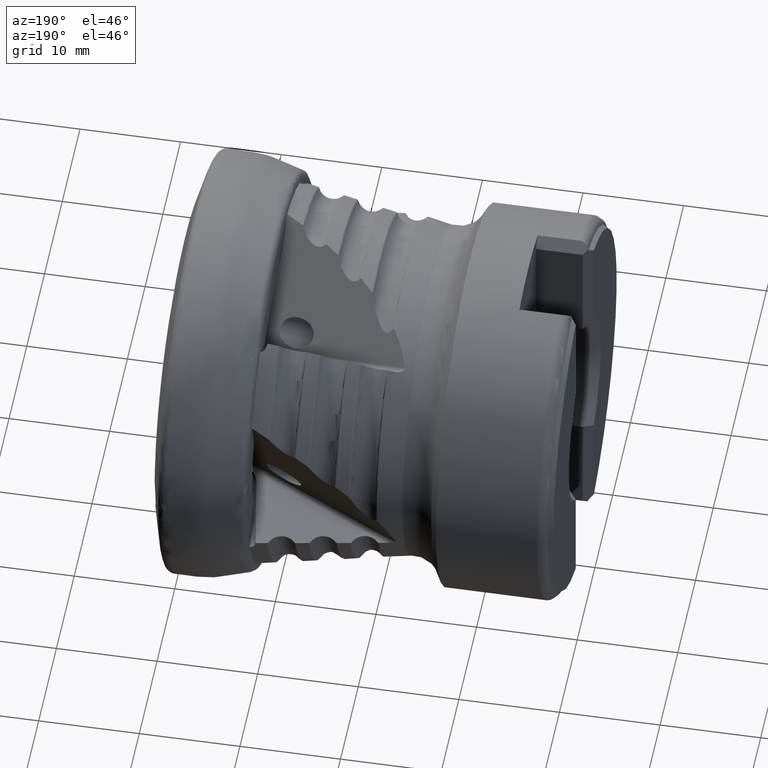
[diagram: clean part render]
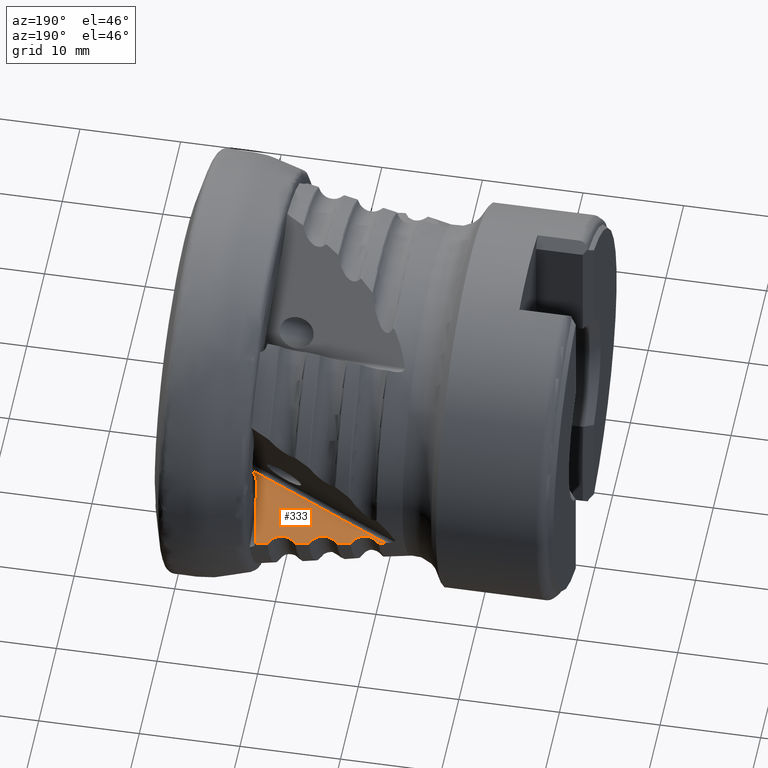
[diagram: same view with one face highlighted and labeled with its STEP entity id]
A machine part, auxiliary view. The second image highlights one B-rep face of the part: STEP entity #333.
In plain terms, the highlighted planar face has unit normal (0.0698, -0.3083, -0.9487).
Its self-contained STEP definition (entity closure, byte-faithful):
#233 = VERTEX_POINT ( 'NONE', #8314 ) ;
#258 = CARTESIAN_POINT ( 'NONE',  ( -21.13077898559608400, 15.63374220928455700, -5.958780708422547300 ) ) ;
#293 = CARTESIAN_POINT ( 'NONE',  ( -21.17644368797330800, 15.67778597013880300, -5.976448909384140000 ) ) ;
#333 = ADVANCED_FACE ( 'NONE', ( #2074 ), #7464, .F. ) ;
#340 = CARTESIAN_POINT ( 'NONE',  ( -21.24468785600371100, 15.69721520097060500, -5.987779528999408500 ) ) ;
#343 = CARTESIAN_POINT ( 'NONE',  ( -21.30936546724134600, 15.68481944316674500, -5.988507350455400100 ) ) ;
#407 = EDGE_CURVE ( 'NONE', #1407, #2647, #2419, .T. ) ;
#487 = B_SPLINE_CURVE_WITH_KNOTS ( 'NONE', 3,
 ( #1567, #2274, #3712, #3701 ),
 .UNSPECIFIED., .F., .F.,
 ( 4, 4 ),
 ( 2.036036672988554700E-007, 0.001244926397012825100 ),
 .UNSPECIFIED. ) ;
#517 = EDGE_CURVE ( 'NONE', #1560, #5866, #7891, .T. ) ;
#594 = VERTEX_POINT ( 'NONE', #9152 ) ;
#600 = AXIS2_PLACEMENT_3D ( 'NONE', #3611, #3164, #5948 ) ;
#789 = B_SPLINE_CURVE_WITH_KNOTS ( 'NONE', 3,
 ( #4479, #4472, #4530, #4533 ),
 .UNSPECIFIED., .F., .F.,
 ( 4, 4 ),
 ( 2.036524363510435400E-007, 0.0005924244232392668000 ),
 .UNSPECIFIED. ) ;
#885 = VERTEX_POINT ( 'NONE', #6089 ) ;
#956 = AXIS2_PLACEMENT_3D ( 'NONE', #2192, #2195, #2207 ) ;
#1130 = CARTESIAN_POINT ( 'NONE',  ( -20.95030687636087000, 15.48034117751989300, -5.895668407539222500 ) ) ;
#1145 = CARTESIAN_POINT ( 'NONE',  ( -21.04506692220513400, 15.55107263243876200, -5.925617720775894000 ) ) ;
#1161 = CARTESIAN_POINT ( 'NONE',  ( -21.13077898559608400, 15.63374220928455700, -5.958780708422547300 ) ) ;
#1163 = CARTESIAN_POINT ( 'NONE',  ( -20.74332352935278600, 15.36191969955073400, -5.841972403255405200 ) ) ;
#1165 = ORIENTED_EDGE ( 'NONE', *, *, #7546, .T. ) ;
#1170 = CARTESIAN_POINT ( 'NONE',  ( -14.68017554922010800, 16.86287852377554900, -5.883868100585127400 ) ) ;
#1173 = CARTESIAN_POINT ( 'NONE',  ( -20.63046404064175500, 15.31451623523694000, -5.818272044841218200 ) ) ;
#1175 = CARTESIAN_POINT ( 'NONE',  ( -20.39900161665384500, 15.24844904633547800, -5.779787146301324600 ) ) ;
#1184 = CARTESIAN_POINT ( 'NONE',  ( -20.27738543479607700, 15.22880764472350600, -5.764463389490040300 ) ) ;
#1189 = EDGE_CURVE ( 'NONE', #7876, #233, #789, .T. ) ;
#1192 = CARTESIAN_POINT ( 'NONE',  ( -20.03339726281408100, 15.21848387739227500, -5.743169665906888700 ) ) ;
#1193 = CARTESIAN_POINT ( 'NONE',  ( -19.91199223143153300, 15.22740552301761200, -5.737142130650839900 ) ) ;
#1205 = CARTESIAN_POINT ( 'NONE',  ( -19.67037029993064900, 15.27365548696311000, -5.734404305429641200 ) ) ;
#1209 = CARTESIAN_POINT ( 'NONE',  ( -19.55285448332383800, 15.31072924383423500, -5.737809901684706800 ) ) ;
#1232 = CARTESIAN_POINT ( 'NONE',  ( -19.33060176925052800, 15.41004112547875100, -5.753737068126485900 ) ) ;
#1235 = CARTESIAN_POINT ( 'NONE',  ( -19.22386798189817700, 15.47352000730751900, -5.766514962588680700 ) ) ;
#1244 = CARTESIAN_POINT ( 'NONE',  ( -18.93611578570138900, 15.69400571539829900, -5.816998016207925600 ) ) ;
#1246 = CARTESIAN_POINT ( 'NONE',  ( -18.78070191684981800, 15.88541199853407600, -5.867762820519007300 ) ) ;
#1256 = CARTESIAN_POINT ( 'NONE',  ( -18.68017554922010600, 16.10227306820873800, -5.930834011889275300 ) ) ;
#1261 = EDGE_CURVE ( 'NONE', #7119, #594, #7531, .T. ) ;
#1407 = VERTEX_POINT ( 'NONE', #2684 ) ;
#1560 = VERTEX_POINT ( 'NONE', #2147 ) ;
#1563 = EDGE_CURVE ( 'NONE', #3793, #885, #7801, .T. ) ;
#1567 = CARTESIAN_POINT ( 'NONE',  ( -17.30936546724134200, 16.44872999172213600, -5.942615328961123200 ) ) ;
#1607 = ORIENTED_EDGE ( 'NONE', *, *, #1853, .T. ) ;
#1683 = CARTESIAN_POINT ( 'NONE',  ( -14.53201490601524200, 16.97617012446819700, -5.909785202331270200 ) ) ;
#1720 = EDGE_CURVE ( 'NONE', #4123, #7851, #8244, .T. ) ;
#1850 = CARTESIAN_POINT ( 'NONE',  ( -21.13077898559608400, 15.63374220928455700, -5.958780708422547300 ) ) ;
#1853 = EDGE_CURVE ( 'NONE', #4123, #7876, #3843, .T. ) ;
#2017 = DIRECTION ( 'NONE',  ( 0.9289711258367763200, -0.3264984143814710400, 0.1743887403702933700 ) ) ;
#2021 = ORIENTED_EDGE ( 'NONE', *, *, #7081, .T. ) ;
#2074 = FACE_OUTER_BOUND ( 'NONE', #3999, .T. ) ;
#2147 = CARTESIAN_POINT ( 'NONE',  ( -13.13077898559607700, 17.15622228103376700, -5.865261261095938900 ) ) ;
#2192 = CARTESIAN_POINT ( 'NONE',  ( -4.372891301211312900, 19.02059961734240900, -5.827106973038751500 ) ) ;
#2195 = DIRECTION ( 'NONE',  ( -0.06975647374411161900, 0.3082642445077806200, 0.9487397904213958900 ) ) ;
#2207 = DIRECTION ( 'NONE',  ( 0.0000000000000000000, 0.9510565162951567500, -0.3090169943749377900 ) ) ;
#2259 = EDGE_CURVE ( 'NONE', #7119, #1407, #3043, .T. ) ;
#2274 = CARTESIAN_POINT ( 'NONE',  ( -17.71692943008815400, 16.37115902724115200, -5.947377298636594900 ) ) ;
#2419 = B_SPLINE_CURVE_WITH_KNOTS ( 'NONE', 3,
 ( #9108, #8266, #8848, #8997 ),
 .UNSPECIFIED., .F., .F.,
 ( 4, 4 ),
 ( 2.006483650806691500E-007, 0.0001950608163561744400 ),
 .UNSPECIFIED. ) ;
#2647 = VERTEX_POINT ( 'NONE', #3305 ) ;
#2684 = CARTESIAN_POINT ( 'NONE',  ( -10.53201490601524200, 17.73195789770003500, -5.861253931146295700 ) ) ;
#2904 = CARTESIAN_POINT ( 'NONE',  ( -17.30936546724134200, 16.44872999172213600, -5.942615328961123200 ) ) ;
#2941 = CARTESIAN_POINT ( 'NONE',  ( -17.24465997269405900, 16.46104527986685200, -5.941859311196396700 ) ) ;
#3027 = ORIENTED_EDGE ( 'NONE', *, *, #1261, .F. ) ;
#3037 = CARTESIAN_POINT ( 'NONE',  ( -17.17644058430651200, 16.44154165355684000, -5.930506340958131300 ) ) ;
#3043 = B_SPLINE_CURVE_WITH_KNOTS ( 'NONE', 3,
 ( #7861, #7703, #7890, #7900 ),
 .UNSPECIFIED., .F., .F.,
 ( 4, 4 ),
 ( 0.001447032345118048100, 0.002585979339104676600 ),
 .UNSPECIFIED. ) ;
#3049 = CARTESIAN_POINT ( 'NONE',  ( -17.13077898559608100, 16.39747936440939200, -5.912832347987484000 ) ) ;
#3060 = CIRCLE ( 'NONE', #600, 1.999999999999999100 ) ;
#3107 = B_SPLINE_CURVE_WITH_KNOTS ( 'NONE', 3,
 ( #3049, #3037, #2941, #2904 ),
 .UNSPECIFIED., .F., .F.,
 ( 4, 4 ),
 ( 2.846567567082059400E-007, 0.0001951307910455705000 ),
 .UNSPECIFIED. ) ;
#3164 = DIRECTION ( 'NONE',  ( -0.06975647374411163300, 0.3082642445077806200, 0.9487397904213960000 ) ) ;
#3222 = CARTESIAN_POINT ( 'NONE',  ( -7.791476762625717500, 10.61785928699304900, -3.348244005033093300 ) ) ;
#3305 = CARTESIAN_POINT ( 'NONE',  ( -10.68017554922010600, 17.61884533255605900, -5.835395001576242400 ) ) ;
#3426 = ORIENTED_EDGE ( 'NONE', *, *, #8778, .T. ) ;
#3611 = CARTESIAN_POINT ( 'NONE',  ( -6.458174607319104000, 12.12187608139875600, -3.738897109084158300 ) ) ;
#3638 = ORIENTED_EDGE ( 'NONE', *, *, #2259, .T. ) ;
#3701 = CARTESIAN_POINT ( 'NONE',  ( -18.53201490601524200, 16.21578945967374400, -5.956824152584888800 ) ) ;
#3712 = CARTESIAN_POINT ( 'NONE',  ( -18.12447943596537300, 16.29351312929615500, -5.952113894761911400 ) ) ;
#3737 = ORIENTED_EDGE ( 'NONE', *, *, #6937, .F. ) ;
#3771 = B_SPLINE_CURVE_WITH_KNOTS ( 'NONE', 3,
 ( #8949, #8952, #8892, #8888 ),
 .UNSPECIFIED., .F., .F.,
 ( 4, 4 ),
 ( 2.007257391034554100E-007, 0.0001952955297465423700 ),
 .UNSPECIFIED. ) ;
#3793 = VERTEX_POINT ( 'NONE', #7517 ) ;
#3843 = B_SPLINE_CURVE_WITH_KNOTS ( 'NONE', 3,
 ( #258, #293, #340, #343 ),
 .UNSPECIFIED., .F., .F.,
 ( 4, 4 ),
 ( 2.845870610322324200E-007, 0.0001950961736768307500 ),
 .UNSPECIFIED. ) ;
#3972 = CARTESIAN_POINT ( 'NONE',  ( -14.68017554922010800, 16.86287852377554900, -5.883868100585127400 ) ) ;
#3999 = EDGE_LOOP ( 'NONE', ( #7227, #5811, #3027, #3638, #5446, #3737, #8029, #1165, #3426, #8652, #6073, #5796, #2021, #7914, #1607, #6646, #7172 ) ) ;
#4123 = VERTEX_POINT ( 'NONE', #1850 ) ;
#4315 = CARTESIAN_POINT ( 'NONE',  ( -18.68017554922010600, 16.10227306820873800, -5.930834011889275300 ) ) ;
#4347 = CARTESIAN_POINT ( 'NONE',  ( -17.13077898559608100, 16.39747936440939200, -5.912832347987484000 ) ) ;
#4383 = CARTESIAN_POINT ( 'NONE',  ( -21.30936546724134600, 15.68481944316674500, -5.988507350455400100 ) ) ;
#4444 = B_SPLINE_CURVE_WITH_KNOTS ( 'NONE', 3,
 ( #6410, #6378, #5760, #1170 ),
 .UNSPECIFIED., .F., .F.,
 ( 4, 4 ),
 ( 2.006848237039447500E-007, 0.0001951628913079384800 ),
 .UNSPECIFIED. ) ;
#4472 = CARTESIAN_POINT ( 'NONE',  ( -21.50323195628899200, 15.64766405061930300, -5.990688942985812600 ) ) ;
#4479 = CARTESIAN_POINT ( 'NONE',  ( -21.30936546724134600, 15.68481944316674500, -5.988507350455400100 ) ) ;
#4530 = CARTESIAN_POINT ( 'NONE',  ( -21.69709483970202200, 15.61048945707596000, -5.992864031628736900 ) ) ;
#4533 = CARTESIAN_POINT ( 'NONE',  ( -21.89095404342147000, 15.57329530405166900, -5.995032494460106800 ) ) ;
#4540 = LINE ( 'NONE', #3222, #8131 ) ;
#4588 = CARTESIAN_POINT ( 'NONE',  ( -18.53201490601524200, 16.21578945967374400, -5.956824152584888800 ) ) ;
#4626 = CARTESIAN_POINT ( 'NONE',  ( -8.430719646566968700, 11.79387130887532100, -3.777354063468123100 ) ) ;
#4827 = VERTEX_POINT ( 'NONE', #6741 ) ;
#4833 = DIRECTION ( 'NONE',  ( 0.1496681375759297300, -0.9370572943307733400, 0.3154727812918938800 ) ) ;
#4937 = VERTEX_POINT ( 'NONE', #4347 ) ;
#4998 = VERTEX_POINT ( 'NONE', #4588 ) ;
#5085 = CARTESIAN_POINT ( 'NONE',  ( -14.68017554922010800, 16.86287852377554900, -5.883868100585127400 ) ) ;
#5115 = CARTESIAN_POINT ( 'NONE',  ( -14.78076617774149400, 16.64610511561740200, -5.820830116976019900 ) ) ;
#5143 = CARTESIAN_POINT ( 'NONE',  ( -14.93632320552993400, 16.45486884606128400, -5.770131079243870300 ) ) ;
#5158 = B_SPLINE_CURVE_WITH_KNOTS ( 'NONE', 3,
 ( #5516, #5465, #5406, #5378, #5349, #5338, #5309, #5295, #5278, #5268, #5244, #5212, #5176, #5143, #5115, #5085 ),
 .UNSPECIFIED., .F., .F.,
 ( 4, 2, 2, 2, 2, 2, 2, 4 ),
 ( 2.844405528036078600E-007, 0.0003657626449779106500, 0.0007312408494030176200, 0.001096719053828124800, 0.001462197258253231700, 0.001827675462678328600, 0.002193153667103425700, 0.002924110075953617700 ),
 .UNSPECIFIED. ) ;
#5176 = CARTESIAN_POINT ( 'NONE',  ( -15.22434137562434300, 16.23479172021412300, -5.719800337880643700 ) ) ;
#5212 = CARTESIAN_POINT ( 'NONE',  ( -15.33115324693827700, 16.17149234300801200, -5.707086509160517600 ) ) ;
#5244 = CARTESIAN_POINT ( 'NONE',  ( -15.55349010785073600, 16.07258042785972000, -5.691295486641306100 ) ) ;
#5268 = CARTESIAN_POINT ( 'NONE',  ( -15.67110890719557200, 16.03570305882871900, -5.687961272510728300 ) ) ;
#5278 = CARTESIAN_POINT ( 'NONE',  ( -15.91267767565716600, 15.98989945903658400, -5.690840221403256300 ) ) ;
#5295 = CARTESIAN_POINT ( 'NONE',  ( -16.03405495560402700, 15.98118384553703200, -5.696932660119581500 ) ) ;
#5309 = CARTESIAN_POINT ( 'NONE',  ( -16.27798553813194700, 15.99189125378760300, -5.718346801905991800 ) ) ;
#5328 = EDGE_CURVE ( 'NONE', #233, #3793, #4540, .T. ) ;
#5338 = CARTESIAN_POINT ( 'NONE',  ( -16.39950068986882300, 16.01169790347957500, -5.733716822793061500 ) ) ;
#5349 = CARTESIAN_POINT ( 'NONE',  ( -16.63080866049044500, 16.07802477815620500, -5.772274742110410800 ) ) ;
#5378 = CARTESIAN_POINT ( 'NONE',  ( -16.74358885445176200, 16.12552688203526700, -5.796001320283892300 ) ) ;
#5406 = CARTESIAN_POINT ( 'NONE',  ( -16.95041218657392100, 16.24405765647224000, -5.849721071984141000 ) ) ;
#5446 = ORIENTED_EDGE ( 'NONE', *, *, #407, .T. ) ;
#5465 = CARTESIAN_POINT ( 'NONE',  ( -17.04511172252255200, 16.31481261986645800, -5.879673574573131700 ) ) ;
#5498 = EDGE_CURVE ( 'NONE', #4827, #4998, #487, .T. ) ;
#5516 = CARTESIAN_POINT ( 'NONE',  ( -17.13077898559608100, 16.39747936440939200, -5.912832347987484000 ) ) ;
#5615 = EDGE_CURVE ( 'NONE', #594, #885, #3060, .T. ) ;
#5760 = CARTESIAN_POINT ( 'NONE',  ( -14.65335391041762000, 16.92067931636496100, -5.900676644800968900 ) ) ;
#5796 = ORIENTED_EDGE ( 'NONE', *, *, #5498, .T. ) ;
#5811 = ORIENTED_EDGE ( 'NONE', *, *, #5615, .F. ) ;
#5866 = VERTEX_POINT ( 'NONE', #8042 ) ;
#5948 = DIRECTION ( 'NONE',  ( 0.9975640502598252000, 0.02155593585459991300, 0.06634234890810929200 ) ) ;
#6042 = VERTEX_POINT ( 'NONE', #1683 ) ;
#6073 = ORIENTED_EDGE ( 'NONE', *, *, #6598, .T. ) ;
#6089 = CARTESIAN_POINT ( 'NONE',  ( -7.646311910045835000, 10.56815675161849900, -3.321421368308210100 ) ) ;
#6116 = CARTESIAN_POINT ( 'NONE',  ( -14.53201490601524200, 16.97617012446819700, -5.909785202331270200 ) ) ;
#6138 = CARTESIAN_POINT ( 'NONE',  ( -14.12447772733913500, 17.05339780619461400, -5.904913662644360400 ) ) ;
#6187 = CARTESIAN_POINT ( 'NONE',  ( -13.30936546724134200, 17.20764868293049700, -5.895101354694010500 ) ) ;
#6264 = CARTESIAN_POINT ( 'NONE',  ( -13.71692775298188300, 17.13055652410781000, -5.900018774448619200 ) ) ;
#6378 = CARTESIAN_POINT ( 'NONE',  ( -14.59676922132218600, 16.96389927921873700, -5.910559250033964300 ) ) ;
#6410 = CARTESIAN_POINT ( 'NONE',  ( -14.53201490601524200, 16.97617012446819700, -5.909785202331270200 ) ) ;
#6436 = EDGE_CURVE ( 'NONE', #4937, #7920, #5158, .T. ) ;
#6598 = EDGE_CURVE ( 'NONE', #4937, #4827, #3107, .T. ) ;
#6646 = ORIENTED_EDGE ( 'NONE', *, *, #1189, .T. ) ;
#6741 = CARTESIAN_POINT ( 'NONE',  ( -17.30936546724134200, 16.44872999172213600, -5.942615328961123200 ) ) ;
#6937 = EDGE_CURVE ( 'NONE', #1560, #2647, #7120, .T. ) ;
#7081 = EDGE_CURVE ( 'NONE', #4998, #7851, #3771, .T. ) ;
#7119 = VERTEX_POINT ( 'NONE', #8862 ) ;
#7120 = B_SPLINE_CURVE_WITH_KNOTS ( 'NONE', 3,
 ( #9558, #9556, #9554, #9540, #9529, #9525, #9505, #9493, #9473, #9458, #9446, #9444, #9437, #9428, #9406, #9395 ),
 .UNSPECIFIED., .F., .F.,
 ( 4, 2, 2, 2, 2, 2, 2, 4 ),
 ( 2.845484682388857800E-007, 0.0003656986682397511000, 0.0007311127880112632500, 0.001096526907782775400, 0.001461941027554287600, 0.001827355147325800100, 0.002192769267097311900, 0.002923597506640343000 ),
 .UNSPECIFIED. ) ;
#7172 = ORIENTED_EDGE ( 'NONE', *, *, #5328, .T. ) ;
#7180 = B_SPLINE_CURVE_WITH_KNOTS ( 'NONE', 3,
 ( #6187, #6264, #6138, #6116 ),
 .UNSPECIFIED., .F., .F.,
 ( 4, 4 ),
 ( 2.035607901791505000E-007, 0.001244659099788397800 ),
 .UNSPECIFIED. ) ;
#7227 = ORIENTED_EDGE ( 'NONE', *, *, #1563, .T. ) ;
#7315 = VECTOR ( 'NONE', #4833, 1000.000000000000000 ) ;
#7464 = PLANE ( 'NONE',  #8844 ) ;
#7517 = CARTESIAN_POINT ( 'NONE',  ( -7.791476762625722000, 10.61785928699304700, -3.348244005033093300 ) ) ;
#7531 = LINE ( 'NONE', #4626, #7315 ) ;
#7546 = EDGE_CURVE ( 'NONE', #5866, #6042, #7180, .T. ) ;
#7703 = CARTESIAN_POINT ( 'NONE',  ( -9.785891183600208300, 17.87248636774810600, -5.852055352896065300 ) ) ;
#7801 = CIRCLE ( 'NONE', #956, 9.404123203702909000 ) ;
#7851 = VERTEX_POINT ( 'NONE', #4315 ) ;
#7861 = CARTESIAN_POINT ( 'NONE',  ( -9.412815391743269100, 17.94267489963152300, -5.847430442072906400 ) ) ;
#7876 = VERTEX_POINT ( 'NONE', #4383 ) ;
#7890 = CARTESIAN_POINT ( 'NONE',  ( -10.15895779311300700, 17.80224789313636800, -5.856663361207569800 ) ) ;
#7891 = B_SPLINE_CURVE_WITH_KNOTS ( 'NONE', 3,
 ( #8845, #8256, #9078, #8789 ),
 .UNSPECIFIED., .F., .F.,
 ( 4, 4 ),
 ( 2.847646178357478000E-007, 0.0001951724161148856800 ),
 .UNSPECIFIED. ) ;
#7900 = CARTESIAN_POINT ( 'NONE',  ( -10.53201490601524200, 17.73195789770003500, -5.861253931146295700 ) ) ;
#7914 = ORIENTED_EDGE ( 'NONE', *, *, #1720, .F. ) ;
#7920 = VERTEX_POINT ( 'NONE', #3972 ) ;
#8029 = ORIENTED_EDGE ( 'NONE', *, *, #517, .T. ) ;
#8042 = CARTESIAN_POINT ( 'NONE',  ( -13.30936546724134200, 17.20764868293049700, -5.895101354694010500 ) ) ;
#8131 = VECTOR ( 'NONE', #2017, 1000.000000000000000 ) ;
#8181 = DIRECTION ( 'NONE',  ( 0.9975640502598252000, 0.02155593585460012900, 0.06634234890810923600 ) ) ;
#8244 = B_SPLINE_CURVE_WITH_KNOTS ( 'NONE', 3,
 ( #1161, #1145, #1130, #1163, #1173, #1175, #1184, #1192, #1193, #1205, #1209, #1232, #1235, #1244, #1246, #1256 ),
 .UNSPECIFIED., .F., .F.,
 ( 4, 2, 2, 2, 2, 2, 2, 4 ),
 ( 2.843708042053603900E-007, 0.0003658640161518949000, 0.0007314436614995845200, 0.001097023306847274300, 0.001462602952194963600, 0.001828182597542653200, 0.002193762242890343000, 0.002924921533585716000 ),
 .UNSPECIFIED. ) ;
#8256 = CARTESIAN_POINT ( 'NONE',  ( -13.17643300487743700, 17.20031013681654400, -5.882943003889405300 ) ) ;
#8266 = CARTESIAN_POINT ( 'NONE',  ( -10.59674712793527000, 17.71976129984415800, -5.862050478864421900 ) ) ;
#8314 = CARTESIAN_POINT ( 'NONE',  ( -21.89095404342147000, 15.57329530405166900, -5.995032494460106800 ) ) ;
#8652 = ORIENTED_EDGE ( 'NONE', *, *, #6436, .F. ) ;
#8720 = CARTESIAN_POINT ( 'NONE',  ( -4.372891301211313800, 19.02059961734240900, -5.827106973038752400 ) ) ;
#8778 = EDGE_CURVE ( 'NONE', #6042, #7920, #4444, .T. ) ;
#8787 = DIRECTION ( 'NONE',  ( 0.06975647374411166100, -0.3082642445077806200, -0.9487397904213960000 ) ) ;
#8789 = CARTESIAN_POINT ( 'NONE',  ( -13.30936546724134200, 17.20764868293049700, -5.895101354694010500 ) ) ;
#8844 = AXIS2_PLACEMENT_3D ( 'NONE', #8720, #8787, #8181 ) ;
#8845 = CARTESIAN_POINT ( 'NONE',  ( -13.13077898559607700, 17.15622228103376700, -5.865261261095938900 ) ) ;
#8848 = CARTESIAN_POINT ( 'NONE',  ( -10.65335205310349700, 17.67660941739090000, -5.852191482159853700 ) ) ;
#8862 = CARTESIAN_POINT ( 'NONE',  ( -9.412815391743269100, 17.94267489963152300, -5.847430442072906400 ) ) ;
#8888 = CARTESIAN_POINT ( 'NONE',  ( -18.68017554922010600, 16.10227306820873800, -5.930834011889275300 ) ) ;
#8892 = CARTESIAN_POINT ( 'NONE',  ( -18.65335932891818500, 16.16012250966799300, -5.947658761478556300 ) ) ;
#8949 = CARTESIAN_POINT ( 'NONE',  ( -18.53201490601524200, 16.21578945967374400, -5.956824152584888800 ) ) ;
#8952 = CARTESIAN_POINT ( 'NONE',  ( -18.59680000808414800, 16.20343388270018200, -5.957572932890551300 ) ) ;
#8997 = CARTESIAN_POINT ( 'NONE',  ( -10.68017554922010600, 17.61884533255605900, -5.835395001576242400 ) ) ;
#9078 = CARTESIAN_POINT ( 'NONE',  ( -13.24463167307456100, 17.21989335849560400, -5.894320312770491700 ) ) ;
#9108 = CARTESIAN_POINT ( 'NONE',  ( -10.53201490601524200, 17.73195789770003500, -5.861253931146295700 ) ) ;
#9152 = CARTESIAN_POINT ( 'NONE',  ( -8.430719646566968700, 11.79387130887532100, -3.777354063468123100 ) ) ;
#9395 = CARTESIAN_POINT ( 'NONE',  ( -10.68017554922010600, 17.61884533255605900, -5.835395001576242400 ) ) ;
#9406 = CARTESIAN_POINT ( 'NONE',  ( -10.78081122710853600, 17.40212757847630000, -5.772378413346166000 ) ) ;
#9428 = CARTESIAN_POINT ( 'NONE',  ( -10.93647604100518600, 17.21100839944986700, -5.721725345650203700 ) ) ;
#9437 = CARTESIAN_POINT ( 'NONE',  ( -11.22471928225373400, 16.99124390699235600, -5.671512733479887400 ) ) ;
#9444 = CARTESIAN_POINT ( 'NONE',  ( -11.33159886201294800, 16.92808755663520900, -5.658850355290685900 ) ) ;
#9446 = CARTESIAN_POINT ( 'NONE',  ( -11.55401948530951400, 16.82950284295131400, -5.643171805634789700 ) ) ;
#9458 = CARTESIAN_POINT ( 'NONE',  ( -11.67173132639383200, 16.79279156118611400, -5.639898397459390400 ) ) ;
#9473 = CARTESIAN_POINT ( 'NONE',  ( -11.91327229954671700, 16.74737481164264000, -5.642900997955973900 ) ) ;
#9493 = CARTESIAN_POINT ( 'NONE',  ( -12.03463352441054100, 16.73884390778404500, -5.649052272016311900 ) ) ;
#9505 = CARTESIAN_POINT ( 'NONE',  ( -12.27852785296940000, 16.74990670007671800, -5.670579219490106100 ) ) ;
#9525 = CARTESIAN_POINT ( 'NONE',  ( -12.39995978482939300, 16.76987321936270800, -5.685995066382264300 ) ) ;
#9529 = CARTESIAN_POINT ( 'NONE',  ( -12.63113593092175400, 16.83646382474995900, -5.724628984550587800 ) ) ;
#9540 = CARTESIAN_POINT ( 'NONE',  ( -12.74384509507648600, 16.88407383157789000, -5.748385400022411500 ) ) ;
#9554 = CARTESIAN_POINT ( 'NONE',  ( -12.95051983468561500, 17.00274306565823300, -5.802139214663787600 ) ) ;
#9556 = CARTESIAN_POINT ( 'NONE',  ( -13.04515922971355100, 17.07353971531612700, -5.832100840055588300 ) ) ;
#9558 = CARTESIAN_POINT ( 'NONE',  ( -13.13077898559607700, 17.15622228103376700, -5.865261261095938900 ) ) ;